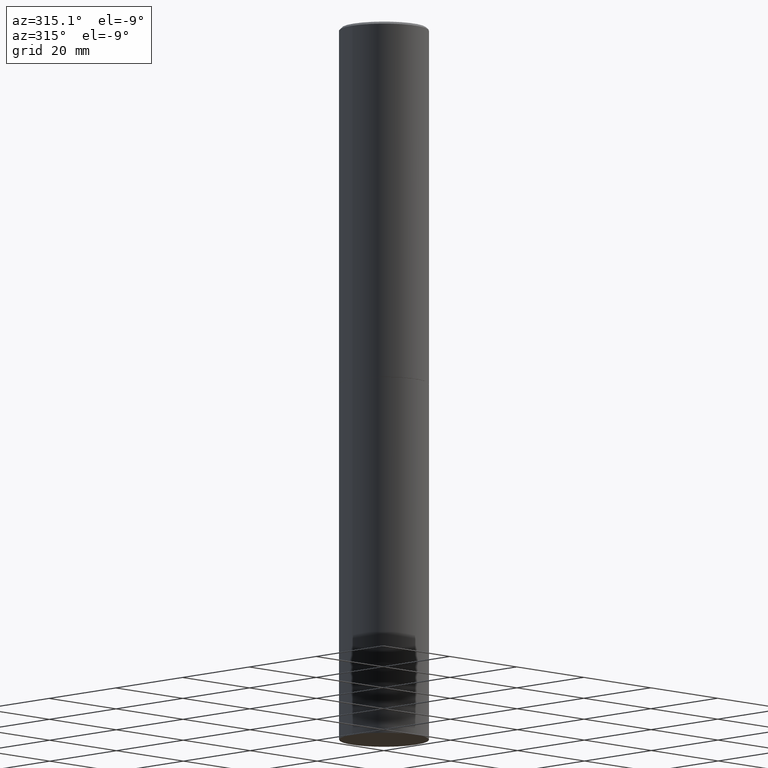
[diagram: clean part render]
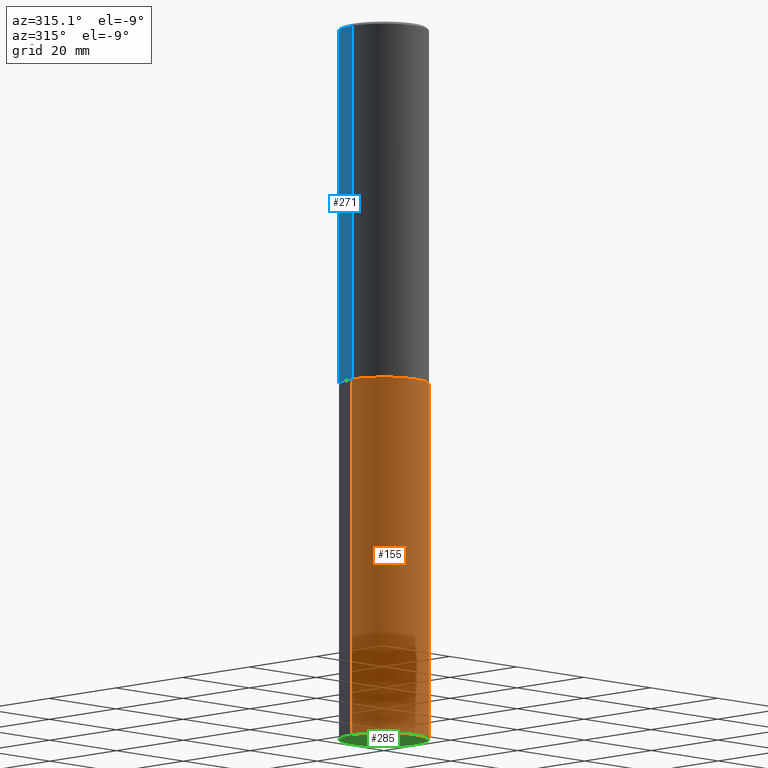
[diagram: same view with three faces highlighted in distinct colors, each labeled with its STEP entity id]
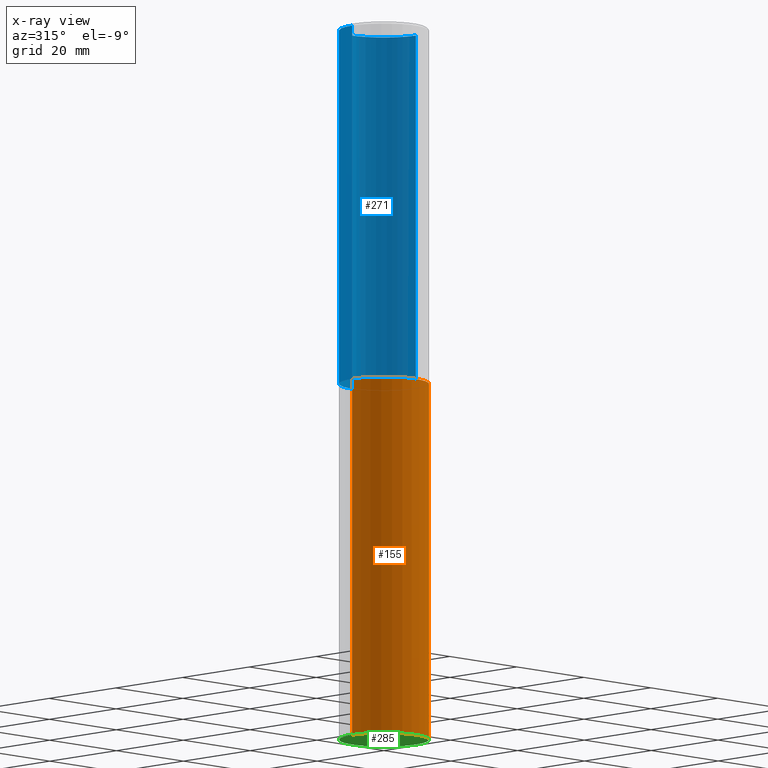
[diagram: x-ray of the same camera — body ghosted, the three highlighted faces saturated]
A machine part, auxiliary view with three faces highlighted in distinct colors.
The next image is the same camera in x-ray (body ghosted, the three faces saturated) — at least one of them is partly hidden behind the body in this view.
Their STEP definitions:

[orange] entity #155 — the highlighted cylindrical surface (partial cylindrical patch) has radius 9.525 mm, axis along (-0, 0, 1).
#7 = VERTEX_POINT ( 'NONE', #70 ) ;
#20 = CARTESIAN_POINT ( 'NONE',  ( 0.3750000000000000555, -2.356749903719122272E-14, -6.000000000000000888 ) ) ;
#22 = ORIENTED_EDGE ( 'NONE', *, *, #360, .F. ) ;
#30 = VERTEX_POINT ( 'NONE', #39 ) ;
#39 = CARTESIAN_POINT ( 'NONE',  ( -0.3750000000000000555, -1.304713076569377962E-14, -6.000000000000000888 ) ) ;
#42 = AXIS2_PLACEMENT_3D ( 'NONE', #260, #94, #171 ) ;
#46 = DIRECTION ( 'NONE',  ( 1.000000000000000000, -6.982962677686265922E-15, 4.876176775795935793E-29 ) ) ;
#70 = CARTESIAN_POINT ( 'NONE',  ( -0.3750000000000000555, -1.304713076569377962E-14, -3.000000000000000444 ) ) ;
#72 = CYLINDRICAL_SURFACE ( 'NONE', #327, 0.3750000000000000555 ) ;
#76 = LINE ( 'NONE', #104, #356 ) ;
#94 = DIRECTION ( 'NONE',  ( -2.445468806185136597E-29, 3.491481338843145583E-15, 1.000000000000000000 ) ) ;
#99 = CARTESIAN_POINT ( 'NONE',  ( 0.3750000000000000555, -2.618611004132350016E-15, 1.828566290923476203E-29 ) ) ;
#101 = CIRCLE ( 'NONE', #289, 0.3750000000000000555 ) ;
#104 = CARTESIAN_POINT ( 'NONE',  ( -0.3750000000000000555, 2.664535259100376091E-15, -1.844600658845589598E-29 ) ) ;
#116 = VECTOR ( 'NONE', #348, 39.37007874015748143 ) ;
#118 = ORIENTED_EDGE ( 'NONE', *, *, #119, .T. ) ;
#119 = EDGE_CURVE ( 'NONE', #366, #317, #127, .T. ) ;
#126 = EDGE_CURVE ( 'NONE', #30, #366, #303, .T. ) ;
#127 = LINE ( 'NONE', #99, #116 ) ;
#141 = ORIENTED_EDGE ( 'NONE', *, *, #193, .F. ) ;
#152 = DIRECTION ( 'NONE',  ( -2.445468806185136597E-29, 3.491481338843145583E-15, 1.000000000000000000 ) ) ;
#155 = ADVANCED_FACE ( 'NONE', ( #222 ), #72, .T. ) ;
#171 = DIRECTION ( 'NONE',  ( 1.000000000000000000, -6.982962677686261189E-15, 0.000000000000000000 ) ) ;
#189 = DIRECTION ( 'NONE',  ( -2.445468806185136597E-29, 3.491481338843145583E-15, 1.000000000000000000 ) ) ;
#193 = EDGE_CURVE ( 'NONE', #30, #7, #76, .T. ) ;
#210 = DIRECTION ( 'NONE',  ( -2.445468806185136877E-29, 3.491481338843145188E-15, 1.000000000000000000 ) ) ;
#222 = FACE_OUTER_BOUND ( 'NONE', #224, .T. ) ;
#224 = EDGE_LOOP ( 'NONE', ( #141, #279, #118, #22 ) ) ;
#242 = CARTESIAN_POINT ( 'NONE',  ( 0.3750000000000000555, -1.309305502066178795E-14, -3.000000000000000444 ) ) ;
#260 = CARTESIAN_POINT ( 'NONE',  ( 1.467281283711081958E-28, -2.094888803305887271E-14, -6.000000000000000888 ) ) ;
#272 = CARTESIAN_POINT ( 'NONE',  ( 0.000000000000000000, 0.000000000000000000, 0.000000000000000000 ) ) ;
#279 = ORIENTED_EDGE ( 'NONE', *, *, #126, .T. ) ;
#284 = DIRECTION ( 'NONE',  ( 1.000000000000000000, -6.982962677686266711E-15, 0.000000000000000000 ) ) ;
#289 = AXIS2_PLACEMENT_3D ( 'NONE', #342, #189, #284 ) ;
#303 = CIRCLE ( 'NONE', #42, 0.3750000000000000555 ) ;
#317 = VERTEX_POINT ( 'NONE', #242 ) ;
#327 = AXIS2_PLACEMENT_3D ( 'NONE', #272, #152, #46 ) ;
#342 = CARTESIAN_POINT ( 'NONE',  ( 7.336406418555409790E-29, -1.047444401652943635E-14, -3.000000000000000444 ) ) ;
#348 = DIRECTION ( 'NONE',  ( -2.445468806185136877E-29, 3.491481338843145188E-15, 1.000000000000000000 ) ) ;
#356 = VECTOR ( 'NONE', #210, 39.37007874015748143 ) ;
#360 = EDGE_CURVE ( 'NONE', #7, #317, #101, .T. ) ;
#366 = VERTEX_POINT ( 'NONE', #20 ) ;

[blue] entity #271 — the highlighted cylindrical surface (partial cylindrical patch) has radius 9.525 mm, axis along (-0, 0, 1).
#5 = EDGE_LOOP ( 'NONE', ( #209, #112, #218, #188 ) ) ;
#8 = VECTOR ( 'NONE', #314, 39.37007874015748143 ) ;
#31 = CARTESIAN_POINT ( 'NONE',  ( 7.333960949749226429E-29, -1.047095253519059492E-14, -2.999000000000000554 ) ) ;
#33 = AXIS2_PLACEMENT_3D ( 'NONE', #31, #221, #186 ) ;
#47 = CARTESIAN_POINT ( 'NONE',  ( 0.3749999999999998335, -2.618611004132348439E-15, 1.828566290923475082E-29 ) ) ;
#48 = AXIS2_PLACEMENT_3D ( 'NONE', #52, #113, #136 ) ;
#52 = CARTESIAN_POINT ( 'NONE',  ( 0.000000000000000000, 0.000000000000000000, 0.000000000000000000 ) ) ;
#56 = VERTEX_POINT ( 'NONE', #124 ) ;
#63 = DIRECTION ( 'NONE',  ( 1.000000000000000000, -6.982962677686266711E-15, 0.000000000000000000 ) ) ;
#74 = CIRCLE ( 'NONE', #33, 0.3750000000000000555 ) ;
#82 = DIRECTION ( 'NONE',  ( -2.445468806185136877E-29, 3.491481338843145188E-15, 1.000000000000000000 ) ) ;
#96 = DIRECTION ( 'NONE',  ( -2.445468806185136597E-29, 3.491481338843145583E-15, 1.000000000000000000 ) ) ;
#97 = VERTEX_POINT ( 'NONE', #235 ) ;
#106 = EDGE_CURVE ( 'NONE', #97, #228, #232, .T. ) ;
#107 = LINE ( 'NONE', #110, #8 ) ;
#110 = CARTESIAN_POINT ( 'NONE',  ( -0.3749999999999998335, 2.664535259100374514E-15, -1.844600658845588757E-29 ) ) ;
#112 = ORIENTED_EDGE ( 'NONE', *, *, #341, .T. ) ;
#113 = DIRECTION ( 'NONE',  ( -2.445468806185136597E-29, 3.491481338843145583E-15, 1.000000000000000000 ) ) ;
#124 = CARTESIAN_POINT ( 'NONE',  ( 0.3750000000000000555, -1.308956353932294494E-14, -2.999000000000000554 ) ) ;
#135 = AXIS2_PLACEMENT_3D ( 'NONE', #230, #96, #63 ) ;
#136 = DIRECTION ( 'NONE',  ( 1.000000000000000000, -6.982962677686265922E-15, 4.876176775795935793E-29 ) ) ;
#156 = CARTESIAN_POINT ( 'NONE',  ( -0.3749999999999999445, -2.605855821883350653E-15, -2.999000000000000554 ) ) ;
#181 = VECTOR ( 'NONE', #82, 39.37007874015748143 ) ;
#186 = DIRECTION ( 'NONE',  ( 1.000000000000000000, -6.982962677686266711E-15, 0.000000000000000000 ) ) ;
#188 = ORIENTED_EDGE ( 'NONE', *, *, #302, .F. ) ;
#209 = ORIENTED_EDGE ( 'NONE', *, *, #312, .T. ) ;
#218 = ORIENTED_EDGE ( 'NONE', *, *, #106, .F. ) ;
#221 = DIRECTION ( 'NONE',  ( -2.445468806185136597E-29, 3.491481338843145583E-15, 1.000000000000000000 ) ) ;
#228 = VERTEX_POINT ( 'NONE', #359 ) ;
#230 = CARTESIAN_POINT ( 'NONE',  ( 4.890937612370294178E-31, -6.982962677686321191E-17, -0.02000000000000008715 ) ) ;
#232 = CIRCLE ( 'NONE', #135, 0.3749999999999996669 ) ;
#235 = CARTESIAN_POINT ( 'NONE',  ( 0.3749999999999996669, -2.642516375941185662E-15, -0.02000000000000008715 ) ) ;
#271 = ADVANCED_FACE ( 'NONE', ( #280 ), #337, .T. ) ;
#280 = FACE_OUTER_BOUND ( 'NONE', #5, .T. ) ;
#302 = EDGE_CURVE ( 'NONE', #56, #97, #338, .T. ) ;
#312 = EDGE_CURVE ( 'NONE', #56, #346, #74, .T. ) ;
#314 = DIRECTION ( 'NONE',  ( -2.445468806185136877E-29, 3.491481338843145188E-15, 1.000000000000000000 ) ) ;
#337 = CYLINDRICAL_SURFACE ( 'NONE', #48, 0.3749999999999998335 ) ;
#338 = LINE ( 'NONE', #47, #181 ) ;
#341 = EDGE_CURVE ( 'NONE', #346, #228, #107, .T. ) ;
#346 = VERTEX_POINT ( 'NONE', #156 ) ;
#359 = CARTESIAN_POINT ( 'NONE',  ( -0.3749999999999996669, 2.548781377355484352E-15, -0.02000000000000008715 ) ) ;

[green] entity #285 — the highlighted planar face has unit normal (0, -0, -1).
#19 = EDGE_CURVE ( 'NONE', #366, #30, #25, .T. ) ;
#20 = CARTESIAN_POINT ( 'NONE',  ( 0.3750000000000000555, -2.356749903719122272E-14, -6.000000000000000888 ) ) ;
#25 = CIRCLE ( 'NONE', #60, 0.3750000000000000555 ) ;
#30 = VERTEX_POINT ( 'NONE', #39 ) ;
#39 = CARTESIAN_POINT ( 'NONE',  ( -0.3750000000000000555, -1.304713076569377962E-14, -6.000000000000000888 ) ) ;
#42 = AXIS2_PLACEMENT_3D ( 'NONE', #260, #94, #171 ) ;
#60 = AXIS2_PLACEMENT_3D ( 'NONE', #332, #204, #66 ) ;
#66 = DIRECTION ( 'NONE',  ( 1.000000000000000000, -6.982962677686261189E-15, 0.000000000000000000 ) ) ;
#94 = DIRECTION ( 'NONE',  ( -2.445468806185136597E-29, 3.491481338843145583E-15, 1.000000000000000000 ) ) ;
#126 = EDGE_CURVE ( 'NONE', #30, #366, #303, .T. ) ;
#138 = DIRECTION ( 'NONE',  ( 2.438088387897960049E-29, -3.491481338843145188E-15, -1.000000000000000000 ) ) ;
#159 = FACE_OUTER_BOUND ( 'NONE', #255, .T. ) ;
#162 = CARTESIAN_POINT ( 'NONE',  ( 2.618611004132496745E-15, 0.3749999999999790723, -6.000000000000001776 ) ) ;
#171 = DIRECTION ( 'NONE',  ( 1.000000000000000000, -6.982962677686261189E-15, 0.000000000000000000 ) ) ;
#184 = DIRECTION ( 'NONE',  ( -1.000000000000000000, 6.982962677686265922E-15, -4.876176775795935793E-29 ) ) ;
#204 = DIRECTION ( 'NONE',  ( -2.445468806185136597E-29, 3.491481338843145583E-15, 1.000000000000000000 ) ) ;
#215 = PLANE ( 'NONE',  #334 ) ;
#255 = EDGE_LOOP ( 'NONE', ( #352, #298 ) ) ;
#260 = CARTESIAN_POINT ( 'NONE',  ( 1.467281283711081958E-28, -2.094888803305887271E-14, -6.000000000000000888 ) ) ;
#285 = ADVANCED_FACE ( 'NONE', ( #159 ), #215, .T. ) ;
#298 = ORIENTED_EDGE ( 'NONE', *, *, #126, .F. ) ;
#303 = CIRCLE ( 'NONE', #42, 0.3750000000000000555 ) ;
#332 = CARTESIAN_POINT ( 'NONE',  ( 1.467281283711081958E-28, -2.094888803305887271E-14, -6.000000000000000888 ) ) ;
#334 = AXIS2_PLACEMENT_3D ( 'NONE', #162, #138, #184 ) ;
#352 = ORIENTED_EDGE ( 'NONE', *, *, #19, .F. ) ;
#366 = VERTEX_POINT ( 'NONE', #20 ) ;